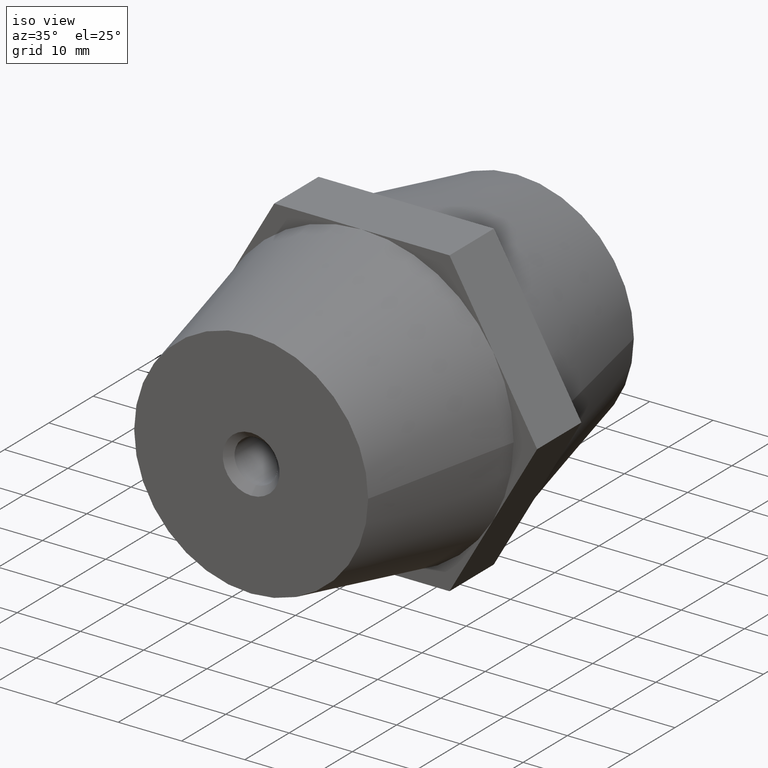
[diagram: clean part render]
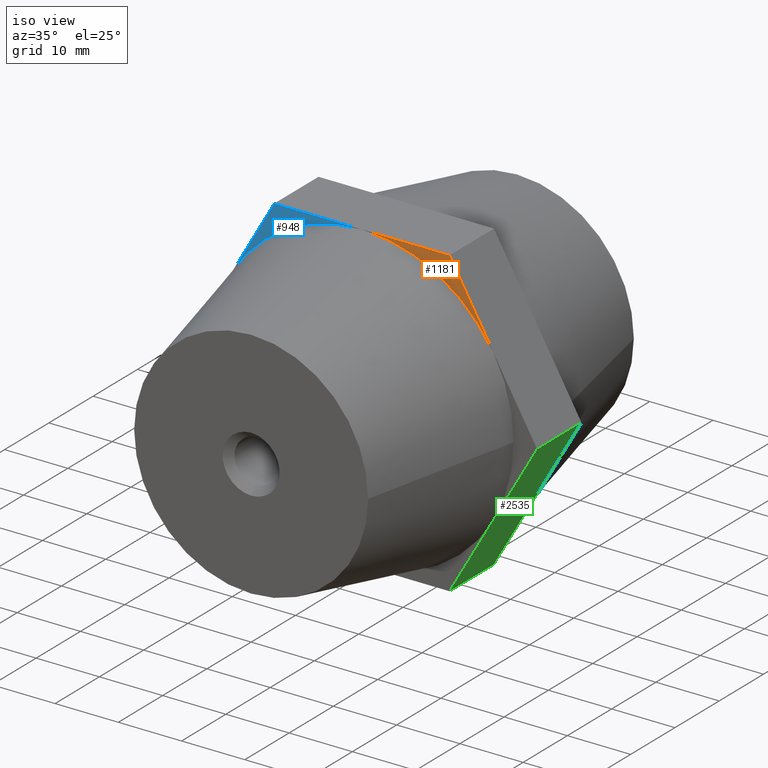
[diagram: same view with three faces highlighted in distinct colors, each labeled with its STEP entity id]
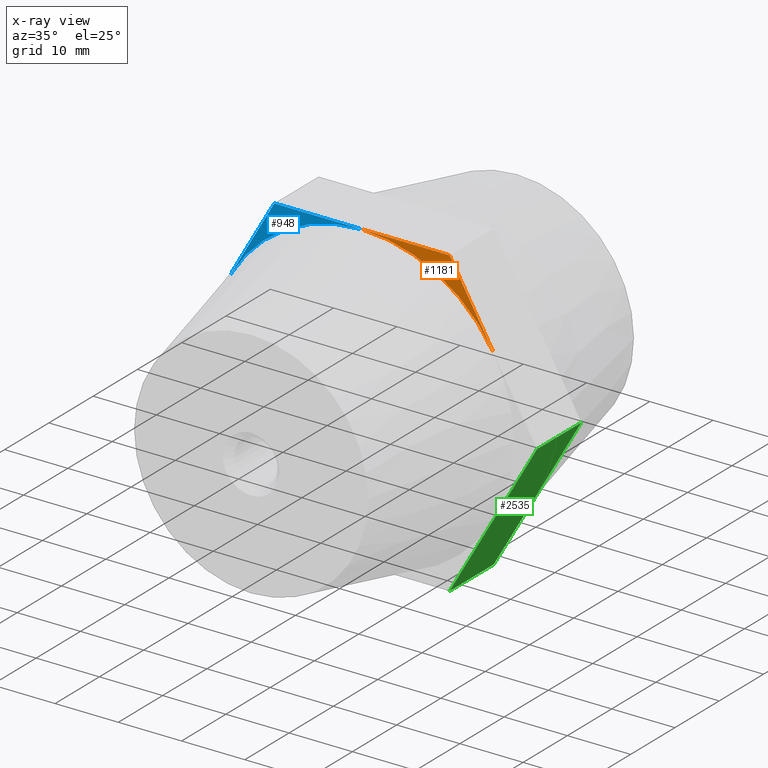
[diagram: x-ray of the same camera — body ghosted, the three highlighted faces saturated]
A machine part, iso view with three faces highlighted in distinct colors.
The next image is the same camera in x-ray (body ghosted, the three faces saturated) — at least one of them is partly hidden behind the body in this view.
Their STEP definitions:

[orange] entity #1181 — the highlighted planar face has unit normal (0, 1, 0).
#17 = ORIENTED_EDGE ( 'NONE', *, *, #1682, .T. ) ;
#18 = DIRECTION ( 'NONE',  ( 0.0000000000000000000, 1.000000000000000000, 0.0000000000000000000 ) ) ;
#69 = FACE_OUTER_BOUND ( 'NONE', #519, .T. ) ;
#179 = CARTESIAN_POINT ( 'NONE',  ( 13.85640646055101900, -5.000000000000000000, 24.00000000000000000 ) ) ;
#519 = EDGE_LOOP ( 'NONE', ( #2258, #17, #3516 ) ) ;
#530 = CARTESIAN_POINT ( 'NONE',  ( 13.85640646055101900, -5.000000000000000000, 24.00000000000000000 ) ) ;
#709 = LINE ( 'NONE', #530, #844 ) ;
#844 = VECTOR ( 'NONE', #1112, 1000.000000000000000 ) ;
#991 = LINE ( 'NONE', #1385, #2199 ) ;
#998 = CIRCLE ( 'NONE', #3649, 24.00000000000000000 ) ;
#1092 = CARTESIAN_POINT ( 'NONE',  ( 1.281634599541417800E-015, -5.000000000000000000, 24.00000000000000000 ) ) ;
#1112 = DIRECTION ( 'NONE',  ( 0.4999999999999998900, 0.0000000000000000000, -0.8660254037844387100 ) ) ;
#1181 = ADVANCED_FACE ( 'NONE', ( #69 ), #2866, .F. ) ;
#1385 = CARTESIAN_POINT ( 'NONE',  ( -13.85640646055101900, -5.000000000000000000, 24.00000000000000000 ) ) ;
#1485 = CARTESIAN_POINT ( 'NONE',  ( 0.0000000000000000000, -5.000000000000000000, 0.0000000000000000000 ) ) ;
#1523 = DIRECTION ( 'NONE',  ( 0.0000000000000000000, 0.0000000000000000000, 1.000000000000000000 ) ) ;
#1682 = EDGE_CURVE ( 'NONE', #2123, #2391, #998, .T. ) ;
#1920 = DIRECTION ( 'NONE',  ( 1.000000000000000000, 0.0000000000000000000, 1.251928832280965700E-016 ) ) ;
#2049 = CARTESIAN_POINT ( 'NONE',  ( 4.286263797015734900E-015, -5.000000000000000000, 6.466135099498040200E-016 ) ) ;
#2101 = CARTESIAN_POINT ( 'NONE',  ( 20.78460969082655300, -5.000000000000000000, 12.00000000000000000 ) ) ;
#2123 = VERTEX_POINT ( 'NONE', #1092 ) ;
#2172 = AXIS2_PLACEMENT_3D ( 'NONE', #1485, #18, #2893 ) ;
#2199 = VECTOR ( 'NONE', #1920, 1000.000000000000000 ) ;
#2258 = ORIENTED_EDGE ( 'NONE', *, *, #2871, .F. ) ;
#2391 = VERTEX_POINT ( 'NONE', #2101 ) ;
#2866 = PLANE ( 'NONE',  #2172 ) ;
#2871 = EDGE_CURVE ( 'NONE', #2123, #3384, #991, .T. ) ;
#2893 = DIRECTION ( 'NONE',  ( 0.0000000000000000000, 0.0000000000000000000, 1.000000000000000000 ) ) ;
#2955 = EDGE_CURVE ( 'NONE', #3384, #2391, #709, .T. ) ;
#3228 = DIRECTION ( 'NONE',  ( 0.0000000000000000000, 1.000000000000000000, 0.0000000000000000000 ) ) ;
#3384 = VERTEX_POINT ( 'NONE', #179 ) ;
#3516 = ORIENTED_EDGE ( 'NONE', *, *, #2955, .F. ) ;
#3649 = AXIS2_PLACEMENT_3D ( 'NONE', #2049, #3228, #1523 ) ;

[blue] entity #948 — the highlighted planar face has unit normal (0, 1, 0).
#78 = CIRCLE ( 'NONE', #240, 24.00000000000000000 ) ;
#240 = AXIS2_PLACEMENT_3D ( 'NONE', #2303, #3471, #1750 ) ;
#373 = CARTESIAN_POINT ( 'NONE',  ( -20.78460969082650000, -5.000000000000000000, 12.00000000000000000 ) ) ;
#461 = VECTOR ( 'NONE', #3460, 1000.000000000000000 ) ;
#491 = EDGE_CURVE ( 'NONE', #1866, #2123, #78, .T. ) ;
#554 = CARTESIAN_POINT ( 'NONE',  ( -13.85640646055101900, -5.000000000000000000, 24.00000000000000000 ) ) ;
#594 = ORIENTED_EDGE ( 'NONE', *, *, #3006, .F. ) ;
#611 = LINE ( 'NONE', #1853, #1618 ) ;
#863 = VERTEX_POINT ( 'NONE', #554 ) ;
#948 = ADVANCED_FACE ( 'NONE', ( #2749 ), #1478, .F. ) ;
#1042 = DIRECTION ( 'NONE',  ( 1.000000000000000000, 0.0000000000000000000, 1.251928832280965700E-016 ) ) ;
#1092 = CARTESIAN_POINT ( 'NONE',  ( 1.281634599541417800E-015, -5.000000000000000000, 24.00000000000000000 ) ) ;
#1095 = ORIENTED_EDGE ( 'NONE', *, *, #1198, .F. ) ;
#1198 = EDGE_CURVE ( 'NONE', #1866, #863, #1629, .T. ) ;
#1306 = DIRECTION ( 'NONE',  ( 0.0000000000000000000, 1.000000000000000000, 0.0000000000000000000 ) ) ;
#1341 = EDGE_LOOP ( 'NONE', ( #1095, #1352, #594 ) ) ;
#1352 = ORIENTED_EDGE ( 'NONE', *, *, #491, .T. ) ;
#1478 = PLANE ( 'NONE',  #3599 ) ;
#1618 = VECTOR ( 'NONE', #1042, 1000.000000000000000 ) ;
#1629 = LINE ( 'NONE', #1740, #461 ) ;
#1740 = CARTESIAN_POINT ( 'NONE',  ( -27.71281292110205300, -5.000000000000000000, 3.597623130494369400E-015 ) ) ;
#1750 = DIRECTION ( 'NONE',  ( -1.000000000000000000, -1.084202172485504400E-016, 0.0000000000000000000 ) ) ;
#1853 = CARTESIAN_POINT ( 'NONE',  ( -13.85640646055101900, -5.000000000000000000, 24.00000000000000000 ) ) ;
#1866 = VERTEX_POINT ( 'NONE', #373 ) ;
#2123 = VERTEX_POINT ( 'NONE', #1092 ) ;
#2303 = CARTESIAN_POINT ( 'NONE',  ( 4.286263797015734900E-015, -5.000000000000000000, 0.0000000000000000000 ) ) ;
#2749 = FACE_OUTER_BOUND ( 'NONE', #1341, .T. ) ;
#3006 = EDGE_CURVE ( 'NONE', #863, #2123, #611, .T. ) ;
#3296 = DIRECTION ( 'NONE',  ( 0.0000000000000000000, 0.0000000000000000000, 1.000000000000000000 ) ) ;
#3460 = DIRECTION ( 'NONE',  ( 0.4999999999999998900, 0.0000000000000000000, 0.8660254037844387100 ) ) ;
#3471 = DIRECTION ( 'NONE',  ( -1.224646799147352000E-016, 1.000000000000000000, 0.0000000000000000000 ) ) ;
#3475 = CARTESIAN_POINT ( 'NONE',  ( 0.0000000000000000000, -5.000000000000000000, 0.0000000000000000000 ) ) ;
#3599 = AXIS2_PLACEMENT_3D ( 'NONE', #3475, #1306, #3296 ) ;

[green] entity #2535 — the highlighted planar face has unit normal (-0.866, 0, 0.5).
#2 = DIRECTION ( 'NONE',  ( 0.4999999999999998900, 0.0000000000000000000, 0.8660254037844387100 ) ) ;
#216 = ORIENTED_EDGE ( 'NONE', *, *, #3469, .F. ) ;
#269 = CARTESIAN_POINT ( 'NONE',  ( 27.71281292110205300, 5.000000000000000000, -1.024206980640409900E-014 ) ) ;
#381 = EDGE_CURVE ( 'NONE', #1810, #951, #1642, .T. ) ;
#405 = CARTESIAN_POINT ( 'NONE',  ( 13.85640646055100000, 5.000000000000000000, -24.00000000000000000 ) ) ;
#528 = EDGE_CURVE ( 'NONE', #964, #3609, #2165, .T. ) ;
#819 = DIRECTION ( 'NONE',  ( -0.4999999999999998900, 0.0000000000000000000, -0.8660254037844387100 ) ) ;
#889 = VECTOR ( 'NONE', #2438, 1000.000000000000000 ) ;
#941 = VECTOR ( 'NONE', #2127, 1000.000000000000000 ) ;
#951 = VERTEX_POINT ( 'NONE', #405 ) ;
#964 = VERTEX_POINT ( 'NONE', #1263 ) ;
#1027 = CARTESIAN_POINT ( 'NONE',  ( 13.85640646055100000, 5.000000000000000000, -24.00000000000000000 ) ) ;
#1211 = VECTOR ( 'NONE', #2753, 1000.000000000000000 ) ;
#1263 = CARTESIAN_POINT ( 'NONE',  ( 27.71281292110205300, -5.000000000000000000, -1.024206980640409900E-014 ) ) ;
#1350 = ORIENTED_EDGE ( 'NONE', *, *, #3420, .F. ) ;
#1479 = CARTESIAN_POINT ( 'NONE',  ( 13.85640646055100000, -5.000000000000000000, -24.00000000000000000 ) ) ;
#1642 = LINE ( 'NONE', #269, #2886 ) ;
#1732 = LINE ( 'NONE', #1942, #2363 ) ;
#1810 = VERTEX_POINT ( 'NONE', #2309 ) ;
#1844 = CARTESIAN_POINT ( 'NONE',  ( 27.71281292110205300, -5.000000000000000000, -1.024206980640409900E-014 ) ) ;
#1871 = PLANE ( 'NONE',  #3626 ) ;
#1942 = CARTESIAN_POINT ( 'NONE',  ( 27.71281292110205300, 5.000000000000000000, -1.024206980640409900E-014 ) ) ;
#1999 = LINE ( 'NONE', #2467, #941 ) ;
#2127 = DIRECTION ( 'NONE',  ( -0.4999999999999998900, 0.0000000000000000000, -0.8660254037844387100 ) ) ;
#2165 = LINE ( 'NONE', #1844, #3034 ) ;
#2225 = DIRECTION ( 'NONE',  ( -0.4999999999999998900, 0.0000000000000000000, -0.8660254037844387100 ) ) ;
#2309 = CARTESIAN_POINT ( 'NONE',  ( 20.78460969082650000, 5.000000000000000000, -12.00000000000000000 ) ) ;
#2363 = VECTOR ( 'NONE', #2225, 1000.000000000000000 ) ;
#2374 = FACE_OUTER_BOUND ( 'NONE', #3122, .T. ) ;
#2400 = ORIENTED_EDGE ( 'NONE', *, *, #2599, .T. ) ;
#2438 = DIRECTION ( 'NONE',  ( 0.0000000000000000000, -1.000000000000000000, 0.0000000000000000000 ) ) ;
#2467 = CARTESIAN_POINT ( 'NONE',  ( 27.71281292110205300, -5.000000000000000000, -1.024206980640409900E-014 ) ) ;
#2520 = ORIENTED_EDGE ( 'NONE', *, *, #3332, .T. ) ;
#2533 = CARTESIAN_POINT ( 'NONE',  ( 27.71281292110205300, 5.000000000000000000, -1.024206980640409900E-014 ) ) ;
#2535 = ADVANCED_FACE ( 'NONE', ( #2374 ), #1871, .F. ) ;
#2599 = EDGE_CURVE ( 'NONE', #3609, #2681, #1999, .T. ) ;
#2603 = ORIENTED_EDGE ( 'NONE', *, *, #381, .F. ) ;
#2681 = VERTEX_POINT ( 'NONE', #1479 ) ;
#2687 = LINE ( 'NONE', #2972, #889 ) ;
#2753 = DIRECTION ( 'NONE',  ( 0.0000000000000000000, -1.000000000000000000, 0.0000000000000000000 ) ) ;
#2764 = CARTESIAN_POINT ( 'NONE',  ( 27.71281292110205300, 5.000000000000000000, -1.024206980640409900E-014 ) ) ;
#2886 = VECTOR ( 'NONE', #819, 1000.000000000000000 ) ;
#2897 = ORIENTED_EDGE ( 'NONE', *, *, #528, .T. ) ;
#2905 = VERTEX_POINT ( 'NONE', #2533 ) ;
#2908 = LINE ( 'NONE', #1027, #1211 ) ;
#2972 = CARTESIAN_POINT ( 'NONE',  ( 27.71281292110205300, 5.000000000000000000, -1.024206980640409900E-014 ) ) ;
#3034 = VECTOR ( 'NONE', #3540, 1000.000000000000000 ) ;
#3122 = EDGE_LOOP ( 'NONE', ( #2897, #2400, #1350, #2603, #216, #2520 ) ) ;
#3156 = CARTESIAN_POINT ( 'NONE',  ( 20.78460969082655300, -5.000000000000000000, -12.00000000000000000 ) ) ;
#3332 = EDGE_CURVE ( 'NONE', #2905, #964, #2687, .T. ) ;
#3420 = EDGE_CURVE ( 'NONE', #951, #2681, #2908, .T. ) ;
#3469 = EDGE_CURVE ( 'NONE', #2905, #1810, #1732, .T. ) ;
#3540 = DIRECTION ( 'NONE',  ( -0.4999999999999998900, 0.0000000000000000000, -0.8660254037844387100 ) ) ;
#3600 = DIRECTION ( 'NONE',  ( -0.8660254037844387100, 0.0000000000000000000, 0.4999999999999998900 ) ) ;
#3609 = VERTEX_POINT ( 'NONE', #3156 ) ;
#3626 = AXIS2_PLACEMENT_3D ( 'NONE', #2764, #3600, #2 ) ;